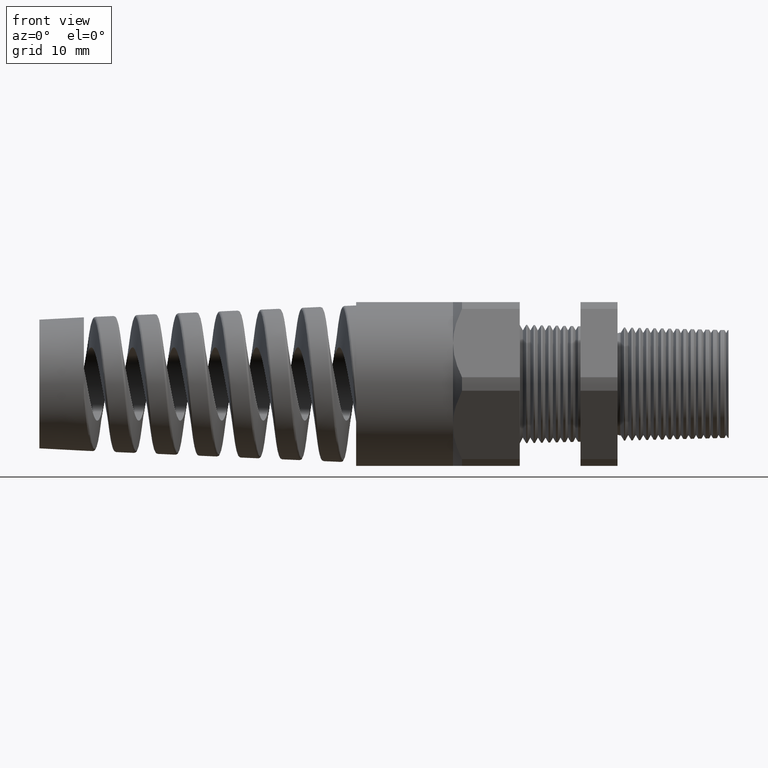
[diagram: clean part render]
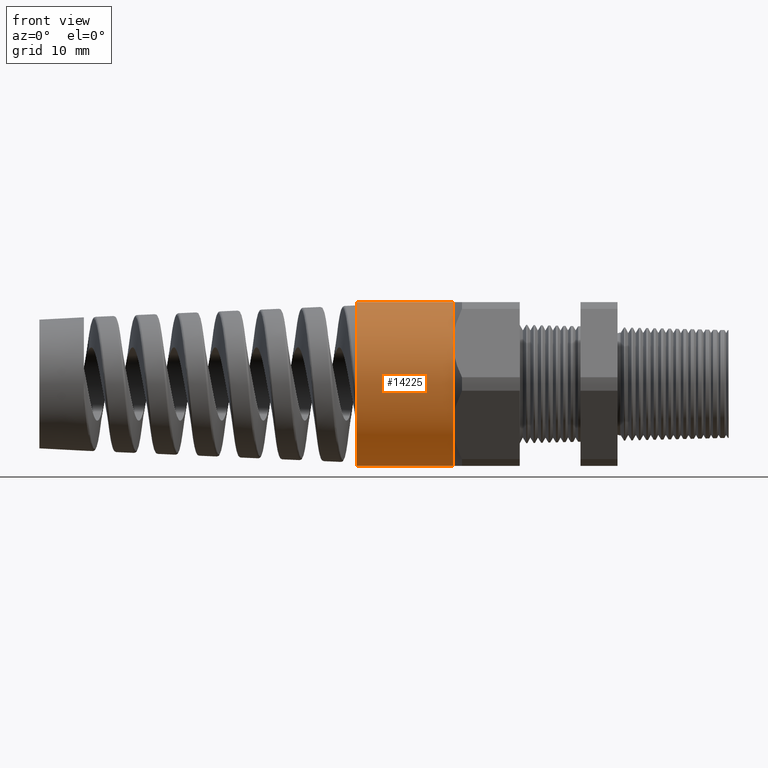
[diagram: same view with one face highlighted and labeled with its STEP entity id]
A machine part, front view. The second image highlights one B-rep face of the part: STEP entity #14225.
In plain terms, the highlighted cylindrical surface (partial cylindrical patch) has radius 11.049 mm, axis along (1, 0, 0).
Its self-contained STEP definition (entity closure, byte-faithful):
#4383 = VERTEX_POINT ( 'NONE', #7878 ) ;
#4399 = VERTEX_POINT ( 'NONE', #8137 ) ;
#4484 = VERTEX_POINT ( 'NONE', #8670 ) ;
#4488 = EDGE_CURVE ( 'NONE', #4383, #4489, #8664, .T. ) ;
#4489 = VERTEX_POINT ( 'NONE', #8644 ) ;
#4512 = EDGE_CURVE ( 'NONE', #4399, #4484, #8742, .T. ) ;
#4991 = VERTEX_POINT ( 'NONE', #9258 ) ;
#4997 = VERTEX_POINT ( 'NONE', #9245 ) ;
#7878 = CARTESIAN_POINT ( 'NONE',  ( -1.697947509874504500, 5.327213576290985700E-017, 0.4349999999999999400 ) ) ;
#8137 = CARTESIAN_POINT ( 'NONE',  ( -1.697947509874504500, 0.0000000000000000000, -0.4349999999999999400 ) ) ;
#8644 = CARTESIAN_POINT ( 'NONE',  ( -1.183700787401574600, 0.0000000000000000000, 0.4349999999999998900 ) ) ;
#8646 = DIRECTION ( 'NONE',  ( 1.000000000000000000, 0.0000000000000000000, 0.0000000000000000000 ) ) ;
#8648 = VECTOR ( 'NONE', #8646, 39.37007874015748100 ) ;
#8650 = CARTESIAN_POINT ( 'NONE',  ( 1.326736918405036800, 5.327213576290986400E-017, 0.4350000000000000000 ) ) ;
#8664 = LINE ( 'NONE', #8650, #8648 ) ;
#8670 = CARTESIAN_POINT ( 'NONE',  ( -1.183700787401574600, 0.0000000000000000000, -0.4350000000000000500 ) ) ;
#8737 = DIRECTION ( 'NONE',  ( 1.000000000000000000, 0.0000000000000000000, 0.0000000000000000000 ) ) ;
#8739 = VECTOR ( 'NONE', #8737, 39.37007874015748100 ) ;
#8740 = CARTESIAN_POINT ( 'NONE',  ( 1.326736918405036800, 0.0000000000000000000, -0.4350000000000000000 ) ) ;
#8742 = LINE ( 'NONE', #8740, #8739 ) ;
#9245 = CARTESIAN_POINT ( 'NONE',  ( -1.183700787401574600, -0.3767210506462307900, 0.2174999999999998900 ) ) ;
#9258 = CARTESIAN_POINT ( 'NONE',  ( -1.183700787401574600, -0.3767210506462308500, -0.2175000000000000000 ) ) ;
#9366 = DIRECTION ( 'NONE',  ( 0.0000000000000000000, 0.0000000000000000000, -1.000000000000000000 ) ) ;
#9367 = DIRECTION ( 'NONE',  ( 1.000000000000000000, 0.0000000000000000000, 0.0000000000000000000 ) ) ;
#9368 = CARTESIAN_POINT ( 'NONE',  ( 1.326736918405036800, 0.0000000000000000000, 0.0000000000000000000 ) ) ;
#9369 = AXIS2_PLACEMENT_3D ( 'NONE', #9368, #9367, #9366 ) ;
#9371 = CYLINDRICAL_SURFACE ( 'NONE', #9369, 0.4350000000000000000 ) ;
#9372 = FACE_OUTER_BOUND ( 'NONE', #14222, .T. ) ;
#9395 = CARTESIAN_POINT ( 'NONE',  ( -1.183700787401574600, 0.0000000000000000000, 0.0000000000000000000 ) ) ;
#9396 = AXIS2_PLACEMENT_3D ( 'NONE', #9395, #9480, #9478 ) ;
#9397 = CIRCLE ( 'NONE', #9396, 0.4350000000000000000 ) ;
#9399 = DIRECTION ( 'NONE',  ( 0.0000000000000000000, 0.0000000000000000000, -1.000000000000000000 ) ) ;
#9400 = DIRECTION ( 'NONE',  ( 1.000000000000000000, 0.0000000000000000000, 0.0000000000000000000 ) ) ;
#9401 = CARTESIAN_POINT ( 'NONE',  ( -1.183700787401574600, 0.0000000000000000000, 0.0000000000000000000 ) ) ;
#9402 = AXIS2_PLACEMENT_3D ( 'NONE', #9401, #9400, #9399 ) ;
#9403 = CIRCLE ( 'NONE', #9402, 0.4350000000000000000 ) ;
#9404 = DIRECTION ( 'NONE',  ( 0.0000000000000000000, 0.0000000000000000000, -1.000000000000000000 ) ) ;
#9405 = DIRECTION ( 'NONE',  ( 1.000000000000000000, 0.0000000000000000000, 0.0000000000000000000 ) ) ;
#9406 = CARTESIAN_POINT ( 'NONE',  ( -1.183700787401574600, 0.0000000000000000000, 0.0000000000000000000 ) ) ;
#9407 = AXIS2_PLACEMENT_3D ( 'NONE', #9406, #9405, #9404 ) ;
#9408 = CIRCLE ( 'NONE', #9407, 0.4350000000000000000 ) ;
#9459 = DIRECTION ( 'NONE',  ( 0.0000000000000000000, 0.0000000000000000000, 1.000000000000000000 ) ) ;
#9460 = DIRECTION ( 'NONE',  ( -1.000000000000000000, 0.0000000000000000000, 0.0000000000000000000 ) ) ;
#9461 = CARTESIAN_POINT ( 'NONE',  ( -1.697947509874504500, 0.0000000000000000000, 0.0000000000000000000 ) ) ;
#9462 = AXIS2_PLACEMENT_3D ( 'NONE', #9461, #9460, #9459 ) ;
#9468 = CIRCLE ( 'NONE', #9462, 0.4349999999999999400 ) ;
#9478 = DIRECTION ( 'NONE',  ( 0.0000000000000000000, 0.0000000000000000000, -1.000000000000000000 ) ) ;
#9480 = DIRECTION ( 'NONE',  ( 1.000000000000000000, 0.0000000000000000000, 0.0000000000000000000 ) ) ;
#14218 = ORIENTED_EDGE ( 'NONE', *, *, #14257, .F. ) ;
#14220 = ORIENTED_EDGE ( 'NONE', *, *, #4488, .F. ) ;
#14222 = EDGE_LOOP ( 'NONE', ( #14220, #14218, #14241, #14249, #14244, #14243 ) ) ;
#14225 = ADVANCED_FACE ( 'NONE', ( #9372 ), #9371, .T. ) ;
#14241 = ORIENTED_EDGE ( 'NONE', *, *, #4512, .T. ) ;
#14243 = ORIENTED_EDGE ( 'NONE', *, *, #14245, .F. ) ;
#14244 = ORIENTED_EDGE ( 'NONE', *, *, #14246, .F. ) ;
#14245 = EDGE_CURVE ( 'NONE', #4489, #4997, #9408, .T. ) ;
#14246 = EDGE_CURVE ( 'NONE', #4997, #4991, #9403, .T. ) ;
#14248 = EDGE_CURVE ( 'NONE', #4991, #4484, #9397, .T. ) ;
#14249 = ORIENTED_EDGE ( 'NONE', *, *, #14248, .F. ) ;
#14257 = EDGE_CURVE ( 'NONE', #4399, #4383, #9468, .T. ) ;